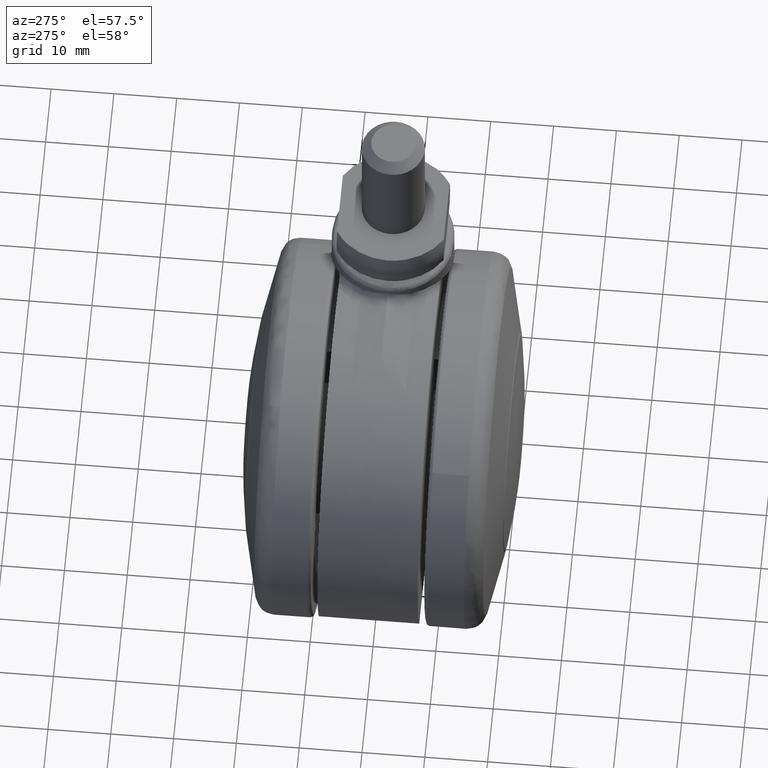
[diagram: clean part render]
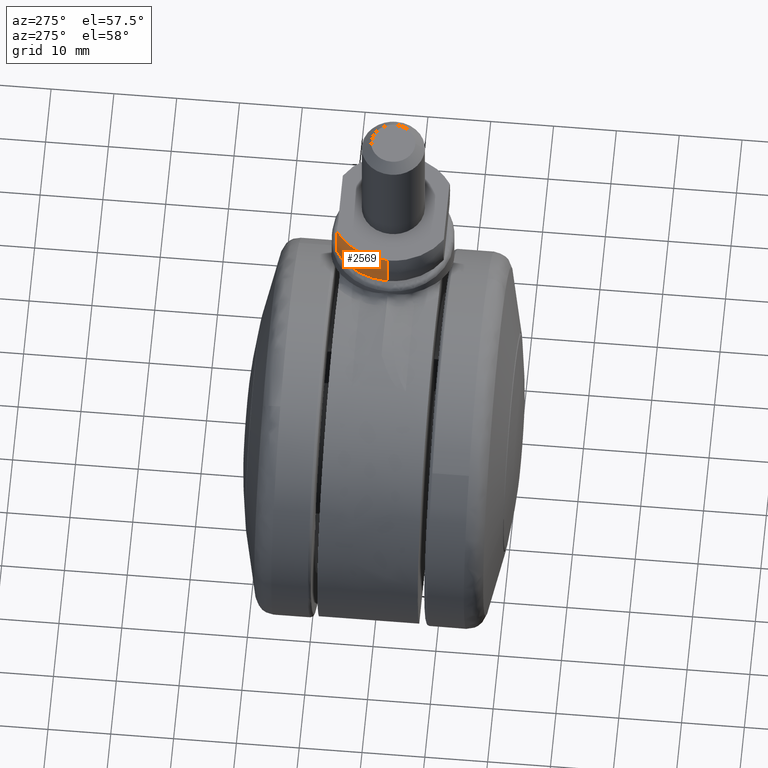
[diagram: same view with one face highlighted and labeled with its STEP entity id]
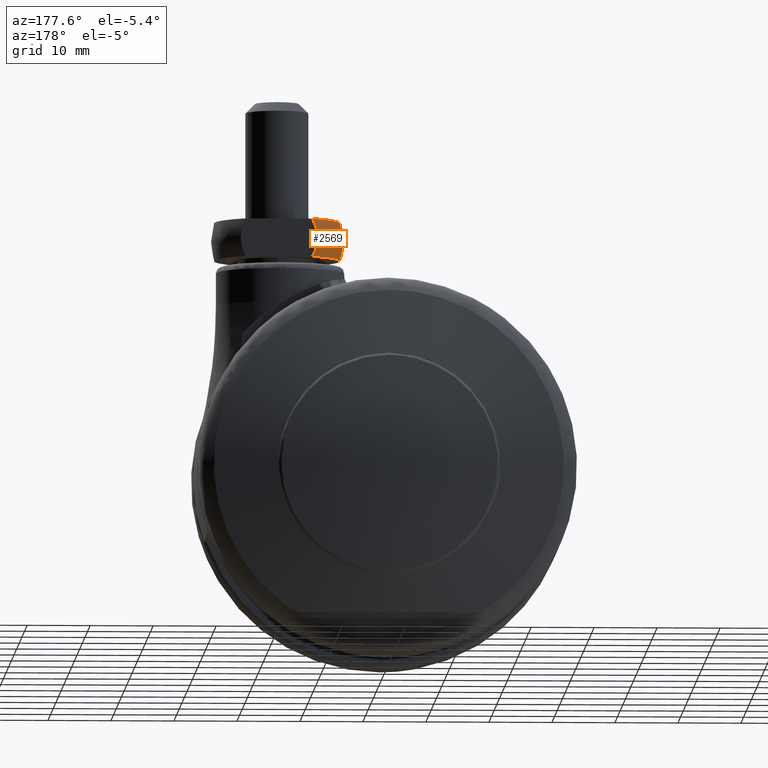
[diagram: same view with one face highlighted and labeled with its STEP entity id]
A machine part, auxiliary view. The second image highlights one B-rep face of the part: STEP entity #2569.
A second angle (auxiliary view) of the same face is appended — the face is thin or edge-on in the first view.
In plain terms, the highlighted face is a freeform B-spline surface patch.
Its self-contained STEP definition (entity closure, byte-faithful):
#2421=CARTESIAN_POINT('',(7.000004601367602,-0.000000609036913,40.000014676393597));
#2422=VERTEX_POINT('',#2421);
#2436=CARTESIAN_POINT('',(7.000000254695632,-0.000000036144714,33.999999145063491));
#2437=VERTEX_POINT('',#2436);
#2438=CARTESIAN_POINT('',(7.000000254695632,-0.000000036144714,33.999999145063484));
#2439=CARTESIAN_POINT('',(6.056540797765981,0.0,37.000007113149564));
#2440=CARTESIAN_POINT('',(7.000004601367602,-0.000000609036913,40.000014676393612));
#2448=(BOUNDED_CURVE()B_SPLINE_CURVE(2,(#2438,#2439,#2440),.UNSPECIFIED.,.F.,.U.)B_SPLINE_CURVE_WITH_KNOTS((3,3),(0.407351170652256,0.592649248460609),.UNSPECIFIED.)CURVE()GEOMETRIC_REPRESENTATION_ITEM()RATIONAL_B_SPLINE_CURVE((0.951024521824938,0.907219422042342,0.951024719984817))REPRESENTATION_ITEM(''));
#2449=EDGE_CURVE('',#2437,#2422,#2448,.T.);
#2494=CARTESIAN_POINT('',(7.093947382129872,0.0,33.716164442188067));
#2495=CARTESIAN_POINT('',(5.952274884191861,0.0,37.000008642414741));
#2496=CARTESIAN_POINT('',(7.093952743426096,0.0,40.283850978709957));
#2497=CARTESIAN_POINT('',(7.093947382129873,5.857907099325284,33.716164442188067));
#2498=CARTESIAN_POINT('',(5.952274884191863,6.533030853333106,37.000008642414755));
#2499=CARTESIAN_POINT('',(7.093952743426097,5.857903928942849,40.283850978709957));
#2500=CARTESIAN_POINT('',(12.227052629615450,8.680371643400465,33.716164442188067));
#2501=CARTESIAN_POINT('',(11.676970477109665,9.680784417230656,37.000008642414734));
#2502=CARTESIAN_POINT('',(12.227055212802295,8.680366945460174,40.283850978709950));
#2510=(BOUNDED_SURFACE()B_SPLINE_SURFACE(2,2,((#2494,#2497,#2500),(#2495,#2498,#2501),(#2496,#2499,#2502)),.UNSPECIFIED.,.F.,.F.,.U.)B_SPLINE_SURFACE_WITH_KNOTS((3,3),(3,3),(0.0,6.754988194895494),(0.0,11.431231332891750),.UNSPECIFIED.)GEOMETRIC_REPRESENTATION_ITEM()RATIONAL_B_SPLINE_SURFACE(((0.955619210290157,0.767600380472401,0.832184547184240),(0.902624700920422,0.725032582423631,0.786035190507208),(0.955619473763643,0.767600592107271,0.832184776625591)))REPRESENTATION_ITEM('')SURFACE());
#2511=CARTESIAN_POINT('',(11.732173084377919,8.500000000000000,39.999999979401053));
#2512=VERTEX_POINT('',#2511);
#2513=CARTESIAN_POINT('',(7.000004601367598,-0.000000609036913,40.000014676393590));
#2514=CARTESIAN_POINT('',(7.000001951292987,5.567262277860998,40.000007327897329));
#2515=CARTESIAN_POINT('',(11.732173084377919,8.500000000000000,39.999999979401053));
#2523=(BOUNDED_CURVE()B_SPLINE_CURVE(2,(#2513,#2514,#2515),.UNSPECIFIED.,.F.,.U.)B_SPLINE_CURVE_WITH_KNOTS((3,3),(0.499999968698258,1.0),.UNSPECIFIED.)CURVE()GEOMETRIC_REPRESENTATION_ITEM()RATIONAL_B_SPLINE_CURVE((1.000000015810800,0.873722685652038,1.0))REPRESENTATION_ITEM(''));
#2524=EDGE_CURVE('',#2422,#2512,#2523,.T.);
#2525=ORIENTED_EDGE('',*,*,#2524,.T.);
#2526=CARTESIAN_POINT('',(11.732173096675339,8.500000000000000,34.0));
#2527=VERTEX_POINT('',#2526);
#2528=CARTESIAN_POINT('',(11.732173084377919,8.500000000000000,39.999999979401053));
#2529=CARTESIAN_POINT('',(11.598142450830000,8.500000000000002,39.775494239597101));
#2530=CARTESIAN_POINT('',(11.480420851343609,8.500000000000002,39.544563027968351));
#2531=CARTESIAN_POINT('',(11.275192295875810,8.500000000000000,39.067166780951077));
#2532=CARTESIAN_POINT('',(11.188102753278351,8.499999999999998,38.820537292224813));
#2533=CARTESIAN_POINT('',(11.082213887308409,8.500000000000000,38.440843799382492));
#2534=CARTESIAN_POINT('',(11.051054951752290,8.500000000000000,38.312649259338471));
#2535=CARTESIAN_POINT('',(10.997259504024900,8.500000000000000,38.052902498292283));
#2536=CARTESIAN_POINT('',(10.974864161588780,8.499999999999998,37.922501337758092));
#2537=CARTESIAN_POINT('',(10.921072701193109,8.500000000000002,37.530032942629852));
#2538=CARTESIAN_POINT('',(10.902983536434240,8.500000000000000,37.266574274467708));
#2539=CARTESIAN_POINT('',(10.902867370452210,8.500000000000000,36.735977893523753));
#2540=CARTESIAN_POINT('',(10.920836844630470,8.500000000000000,36.473809108610943));
#2541=CARTESIAN_POINT('',(10.991313828847790,8.500000000000000,35.955409715478091));
#2542=CARTESIAN_POINT('',(11.043826554054389,8.500000000000002,35.699189801637523));
#2543=CARTESIAN_POINT('',(11.148776814293701,8.500000000000000,35.319376149044231));
#2544=CARTESIAN_POINT('',(11.188137771805270,8.500000000000000,35.193526717689117));
#2545=CARTESIAN_POINT('',(11.275838612908951,8.500000000000000,34.943376708041193));
#2546=CARTESIAN_POINT('',(11.323797896967591,8.499999999999998,34.820197466476259));
#2547=CARTESIAN_POINT('',(11.479116266427400,8.499999999999998,34.457648559128238));
#2548=CARTESIAN_POINT('',(11.598092407606700,8.499999999999998,34.224593493215067));
#2549=CARTESIAN_POINT('',(11.732173096675350,8.500000000000000,33.999999999999993));
#2550=B_SPLINE_CURVE_WITH_KNOTS('',3,(#2528,#2529,#2530,#2531,#2532,#2533,#2534,#2535,#2536,#2537,#2538,#2539,#2540,#2541,#2542,#2543,#2544,#2545,#2546,#2547,#2548,#2549),.UNSPECIFIED.,.F.,.U.,(4,2,2,2,2,2,2,2,2,2,4),(0.750403754385744,0.781249999999993,0.812499999999993,0.828124999999993,0.843749999999994,0.874999999999995,0.906249999999996,0.937499999999998,0.953124999999998,0.968749999999999,1.0),.UNSPECIFIED.);
#2551=EDGE_CURVE('',#2512,#2527,#2550,.T.);
#2552=ORIENTED_EDGE('',*,*,#2551,.T.);
#2553=CARTESIAN_POINT('',(7.000000254695628,-0.000000036144714,33.999999145063484));
#2554=CARTESIAN_POINT('',(6.999999939106960,5.567262469900132,34.000000020598961));
#2555=CARTESIAN_POINT('',(11.732173096675339,8.500000000000000,34.0));
#2563=(BOUNDED_CURVE()B_SPLINE_CURVE(2,(#2553,#2554,#2555),.UNSPECIFIED.,.F.,.U.)B_SPLINE_CURVE_WITH_KNOTS((3,3),(0.499999996284652,1.0),.UNSPECIFIED.)CURVE()GEOMETRIC_REPRESENTATION_ITEM()RATIONAL_B_SPLINE_CURVE((1.000000001876657,0.873722692364884,1.0))REPRESENTATION_ITEM(''));
#2564=EDGE_CURVE('',#2437,#2527,#2563,.T.);
#2565=ORIENTED_EDGE('',*,*,#2564,.F.);
#2566=ORIENTED_EDGE('',*,*,#2449,.T.);
#2567=EDGE_LOOP('',(#2525,#2552,#2565,#2566));
#2568=FACE_OUTER_BOUND('',#2567,.T.);
#2569=ADVANCED_FACE('',(#2568),#2510,.T.);